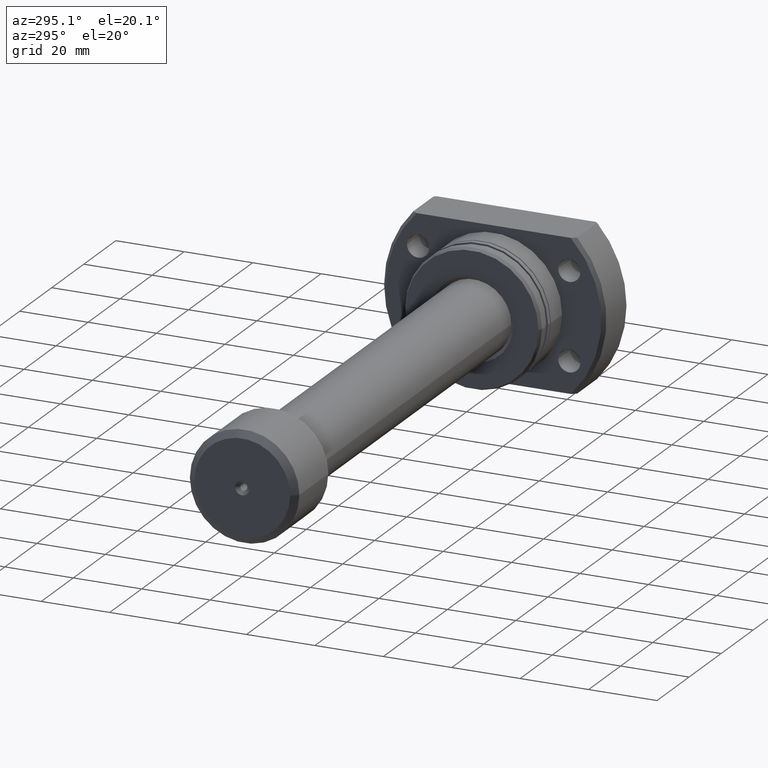
[diagram: clean part render]
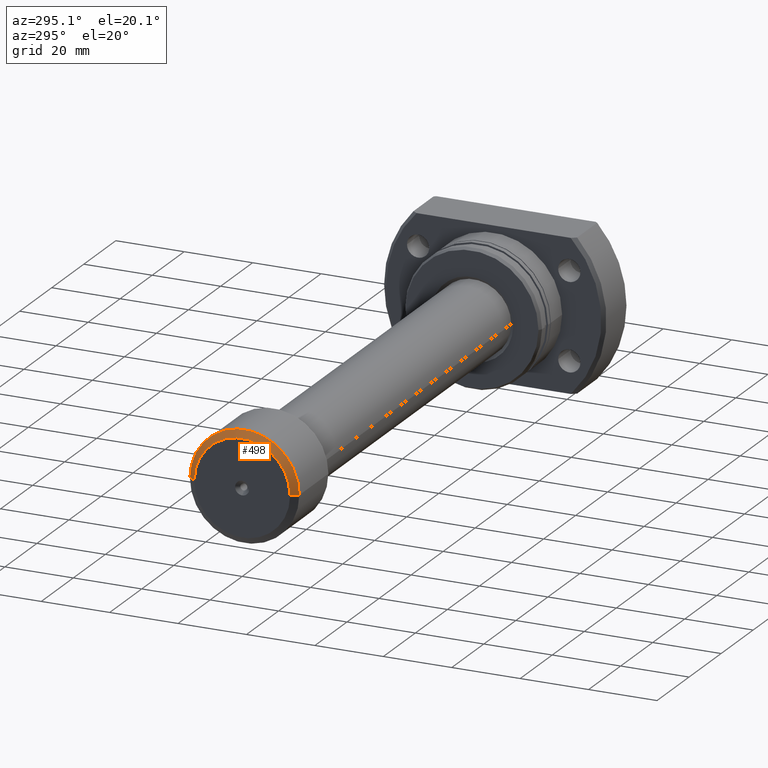
[diagram: same view with one face highlighted and labeled with its STEP entity id]
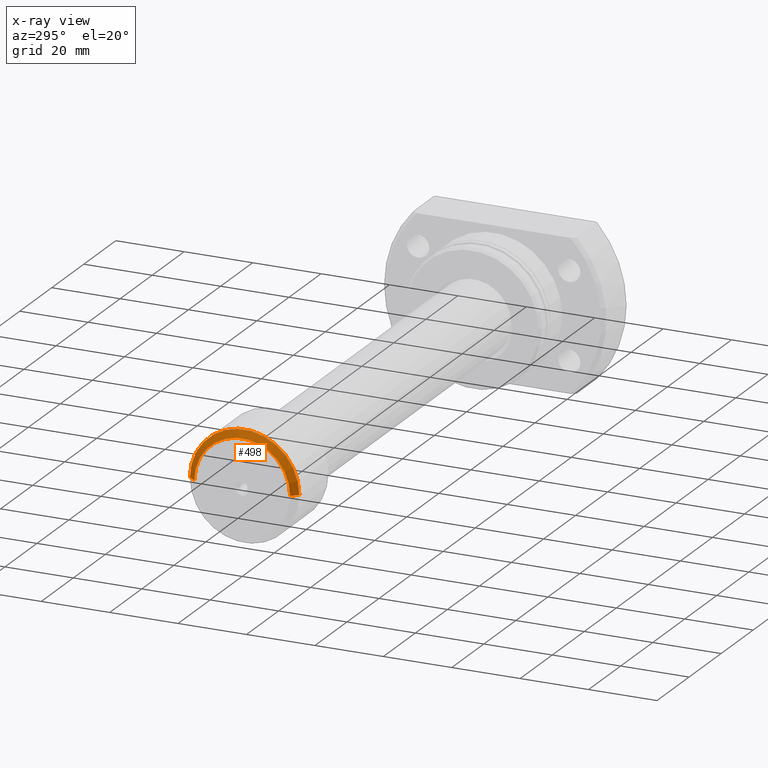
[diagram: x-ray of the same camera — body ghosted, the highlighted face saturated]
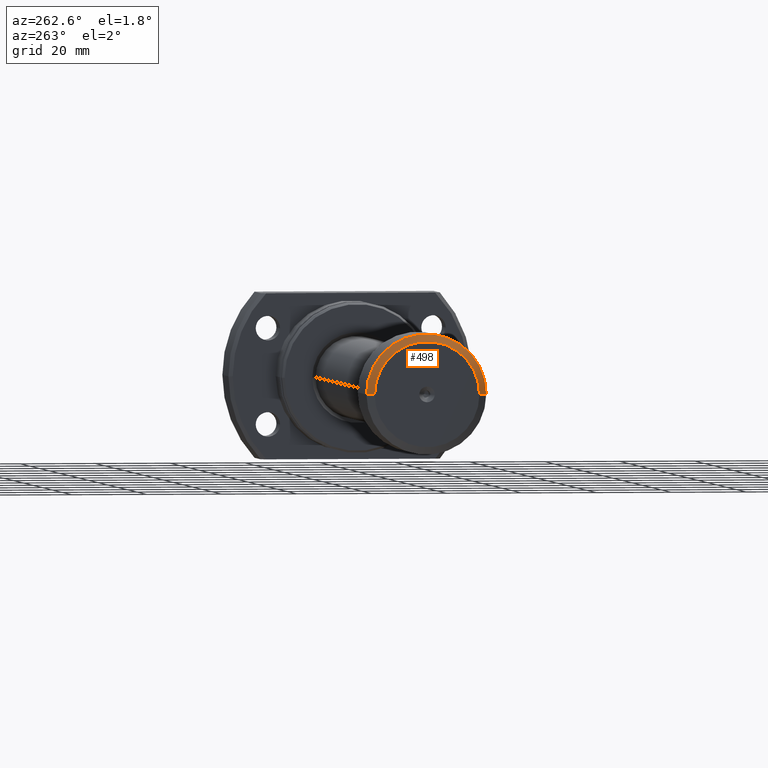
[diagram: same view with one face highlighted and labeled with its STEP entity id]
A machine part, auxiliary view. The second image highlights one B-rep face of the part: STEP entity #498.
The next image is the same camera in x-ray: the body ghosted, the highlighted face saturated — about 0% of this face is hidden behind the body in this view.
A second angle (auxiliary view) of the same face is appended — the face is thin or edge-on in the first view.
In plain terms, the highlighted conical surface has half-angle 53.13 deg.
Its self-contained STEP definition (entity closure, byte-faithful):
#1 = DIRECTION ( 'NONE',  ( -1.000000000000000000, -1.069542322069065801E-17, -0.000000000000000000 ) ) ;
#261 = EDGE_CURVE ( 'NONE', #391, #2558, #559, .T. ) ;
#336 = CARTESIAN_POINT ( 'NONE',  ( 1.415033668626956010E-15, 14.00000000000000000, 0.000000000000000000 ) ) ;
#370 = CARTESIAN_POINT ( 'NONE',  ( 1.500000000000002220, -16.00000000000000000, 1.959434878635765526E-15 ) ) ;
#391 = VERTEX_POINT ( 'NONE', #924 ) ;
#498 = ADVANCED_FACE ( 'NONE', ( #974 ), #748, .T. ) ;
#510 = CARTESIAN_POINT ( 'NONE',  ( 1.714505518806294638E-15, -14.00000000000000000, 1.836970198721029589E-15 ) ) ;
#514 = DIRECTION ( 'NONE',  ( 1.355252715606880543E-17, -1.000000000000000000, 0.000000000000000000 ) ) ;
#527 = ORIENTED_EDGE ( 'NONE', *, *, #261, .F. ) ;
#552 = ORIENTED_EDGE ( 'NONE', *, *, #1533, .T. ) ;
#559 = LINE ( 'NONE', #336, #1946 ) ;
#604 = DIRECTION ( 'NONE',  ( 1.069542322069066109E-17, -1.000000000000000000, 0.000000000000000000 ) ) ;
#618 = CARTESIAN_POINT ( 'NONE',  ( 1.564769593716625324E-15, 1.673587304766748118E-32, 0.000000000000000000 ) ) ;
#748 = CONICAL_SURFACE ( 'NONE', #2968, 14.00000000000000000, 0.9272952180016120760 ) ;
#765 = CARTESIAN_POINT ( 'NONE',  ( 1.564769593716625324E-15, 1.673587304766748118E-32, 0.000000000000000000 ) ) ;
#924 = CARTESIAN_POINT ( 'NONE',  ( 1.415033668626956010E-15, 14.00000000000000000, 0.000000000000000000 ) ) ;
#974 = FACE_OUTER_BOUND ( 'NONE', #2770, .T. ) ;
#1234 = CIRCLE ( 'NONE', #1852, 14.00000000000000000 ) ;
#1246 = ORIENTED_EDGE ( 'NONE', *, *, #1260, .F. ) ;
#1260 = EDGE_CURVE ( 'NONE', #2532, #391, #1234, .T. ) ;
#1440 = AXIS2_PLACEMENT_3D ( 'NONE', #2674, #1, #514 ) ;
#1446 = LINE ( 'NONE', #1984, #1541 ) ;
#1533 = EDGE_CURVE ( 'NONE', #2532, #2810, #1446, .T. ) ;
#1541 = VECTOR ( 'NONE', #2474, 999.9999999999998863 ) ;
#1597 = CIRCLE ( 'NONE', #1440, 16.00000000000000000 ) ;
#1852 = AXIS2_PLACEMENT_3D ( 'NONE', #618, #3031, #604 ) ;
#1946 = VECTOR ( 'NONE', #2303, 999.9999999999998863 ) ;
#1953 = DIRECTION ( 'NONE',  ( -1.069542322069066109E-17, 1.000000000000000000, 0.000000000000000000 ) ) ;
#1984 = CARTESIAN_POINT ( 'NONE',  ( 1.714505518806294638E-15, -14.00000000000000000, 1.714505518806294638E-15 ) ) ;
#2017 = EDGE_CURVE ( 'NONE', #2810, #2558, #1597, .T. ) ;
#2178 = DIRECTION ( 'NONE',  ( 1.000000000000000000, 1.069542322069065801E-17, 0.000000000000000000 ) ) ;
#2303 = DIRECTION ( 'NONE',  ( 0.6000000000000001998, 0.7999999999999999334, 0.000000000000000000 ) ) ;
#2474 = DIRECTION ( 'NONE',  ( 0.6000000000000001998, -0.7999999999999999334, 9.797174393178826150E-17 ) ) ;
#2485 = CARTESIAN_POINT ( 'NONE',  ( 1.500000000000001776, 16.00000000000000000, 0.000000000000000000 ) ) ;
#2532 = VERTEX_POINT ( 'NONE', #510 ) ;
#2558 = VERTEX_POINT ( 'NONE', #2485 ) ;
#2674 = CARTESIAN_POINT ( 'NONE',  ( 1.500000000000001998, 1.604313483103600935E-17, 0.000000000000000000 ) ) ;
#2770 = EDGE_LOOP ( 'NONE', ( #1246, #552, #3096, #527 ) ) ;
#2810 = VERTEX_POINT ( 'NONE', #370 ) ;
#2968 = AXIS2_PLACEMENT_3D ( 'NONE', #765, #2178, #1953 ) ;
#3031 = DIRECTION ( 'NONE',  ( -1.000000000000000000, -1.069542322069065801E-17, -0.000000000000000000 ) ) ;
#3096 = ORIENTED_EDGE ( 'NONE', *, *, #2017, .T. ) ;